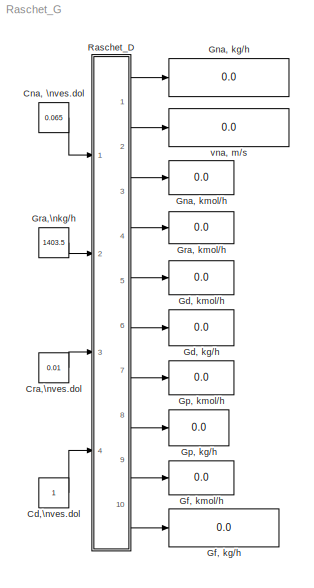
MODEL Raschet_G
KIND model
BLOCK [Constant] Cd,\nves.dol
  SID = 1
BLOCK [Constant] Cna, \nves.dol
  SID = 2
  Value = 0.065
BLOCK [Constant] Cra,\nves.dol
  SID = 3
  Value = 0.01
BLOCK [Display] Gd, kg//h
  Decimation = 1
  Lockdown = off
  Ports = [1]
  SID = 4
BLOCK [Display] Gd, kmol//h
  Decimation = 1
  Lockdown = off
  Ports = [1]
  SID = 5
BLOCK [Display] Gf, kg//h
  Decimation = 1
  Lockdown = off
  Ports = [1]
  SID = 6
BLOCK [Display] Gf, kmol//h
  Decimation = 1
  Lockdown = off
  Ports = [1]
  SID = 7
BLOCK [Display] Gna, kg//h
  Decimation = 1
  Format = long
  Lockdown = off
  Ports = [1]
  SID = 8
BLOCK [Display] Gna, kmol//h
  Decimation = 1
  Lockdown = off
  Ports = [1]
  SID = 9
BLOCK [Display] Gp, kg//h
  Decimation = 1
  Lockdown = off
  Ports = [1]
  SID = 10
BLOCK [Display] Gp, kmol//h
  Decimation = 1
  Lockdown = off
  Ports = [1]
  SID = 11
BLOCK [Display] Gra, kmol//h
  Decimation = 1
  Lockdown = off
  Ports = [1]
  SID = 13
BLOCK [Constant] Gra,\nkg//h
  SID = 12
  Value = 1403.5
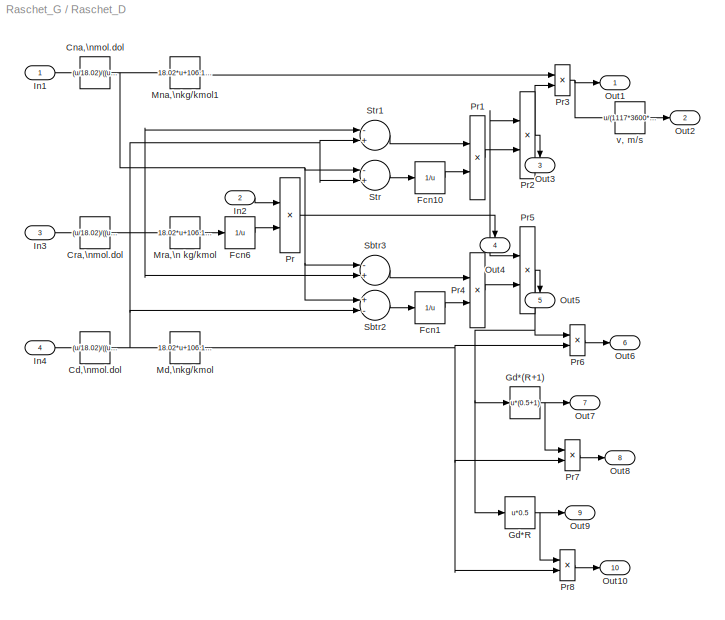
BLOCK [SubSystem] Raschet_D
  FunctionWithSeparateData = off
  MaskHideContents = off
  MinAlgLoopOccurrences = off
  Opaque = off
  Ports = [4, 10]
  PropExecContextOutsideSubsystem = off
  RTWSystemCode = Auto
  RequestExecContextInheritance = off
  SID = 14
BLOCK [Fcn] Raschet_D/Cd,\nmol.dol
  Expr = (u/18.02)/((u/18.02)+((1-u)/106.12))
  SID = 19
BLOCK [Fcn] Raschet_D/Cna,\nmol.dol
  Expr = (u/18.02)/((u/18.02)+((1-u)/106.12))
  SID = 20
BLOCK [Fcn] Raschet_D/Cra,\nmol.dol
  Expr = (u/18.02)/((u/18.02)+((1-u)/106.12))
  SID = 21
BLOCK [Fcn] Raschet_D/Fcn1
  Expr = 1/u
  SID = 22
BLOCK [Fcn] Raschet_D/Fcn10
  Expr = 1/u
  SID = 23
BLOCK [Fcn] Raschet_D/Fcn6
  Expr = 1/u
  SID = 24
BLOCK [Fcn] Raschet_D/Gd*(R+1)
  Expr = u*(0.5+1)
  SID = 25
BLOCK [Fcn] Raschet_D/Gd*R
  Expr = u*0.5
  SID = 26
BLOCK [Inport] Raschet_D/In1
  IconDisplay = Port number
  SID = 15
BLOCK [Inport] Raschet_D/In2
  IconDisplay = Port number
  Port = 2
  SID = 16
BLOCK [Inport] Raschet_D/In3
  IconDisplay = Port number
  Port = 3
  SID = 17
BLOCK [Inport] Raschet_D/In4
  IconDisplay = Port number
  Port = 4
  SID = 18
BLOCK [Fcn] Raschet_D/Md,\nkg//kmol
  Expr = 18.02*u+106.12*(1-u)
  SID = 27
BLOCK [Fcn] Raschet_D/Mna,\nkg//kmol1
  Expr = 18.02*u+106.12*(1-u)
  SID = 28
BLOCK [Fcn] Raschet_D/Mra,\n kg//kmol
  Expr = 18.02*u+106.12*(1-u)
  SID = 29
BLOCK [Outport] Raschet_D/Out1
  IconDisplay = Port number
  SID = 44
BLOCK [Outport] Raschet_D/Out10
  IconDisplay = Port number
  Port = 10
  SID = 53
BLOCK [Outport] Raschet_D/Out2
  IconDisplay = Port number
  Port = 2
  SID = 45
BLOCK [Outport] Raschet_D/Out3
  IconDisplay = Port number
  Port = 3
  SID = 46
BLOCK [Outport] Raschet_D/Out4
  IconDisplay = Port number
  Port = 4
  SID = 47
BLOCK [Outport] Raschet_D/Out5
  IconDisplay = Port number
  Port = 5
  SID = 48
BLOCK [Outport] Raschet_D/Out6
  IconDisplay = Port number
  Port = 6
  SID = 49
BLOCK [Outport] Raschet_D/Out7
  IconDisplay = Port number
  Port = 7
  SID = 50
BLOCK [Outport] Raschet_D/Out8
  IconDisplay = Port number
  Port = 8
  SID = 51
BLOCK [Outport] Raschet_D/Out9
  IconDisplay = Port number
  Port = 9
  SID = 52
BLOCK [Product] Raschet_D/Pr
  InputSameDT = off
  OutDataTypeStr = Inherit: Inherit via internal rule
  Ports = [2, 1]
  SID = 30
  SaturateOnIntegerOverflow = off
BLOCK [Product] Raschet_D/Pr1
  InputSameDT = off
  OutDataTypeStr = Inherit: Inherit via internal rule
  Ports = [2, 1]
  SID = 31
  SaturateOnIntegerOverflow = off
BLOCK [Product] Raschet_D/Pr2
  InputSameDT = off
  OutDataTypeStr = Inherit: Inherit via internal rule
  Ports = [2, 1]
  SID = 32
  SaturateOnIntegerOverflow = off
BLOCK [Product] Raschet_D/Pr3
  InputSameDT = off
  OutDataTypeStr = Inherit: Inherit via internal rule
  Ports = [2, 1]
  SID = 33
  SaturateOnIntegerOverflow = off
BLOCK [Product] Raschet_D/Pr4
  InputSameDT = off
  OutDataTypeStr = Inherit: Inherit via internal rule
  Ports = [2, 1]
  SID = 34
  SaturateOnIntegerOverflow = off
BLOCK [Product] Raschet_D/Pr5
  InputSameDT = off
  OutDataTypeStr = Inherit: Inherit via internal rule
  Ports = [2, 1]
  SID = 35
  SaturateOnIntegerOverflow = off
BLOCK [Product] Raschet_D/Pr6
  InputSameDT = off
  OutDataTypeStr = Inherit: Inherit via internal rule
  Ports = [2, 1]
  SID = 36
  SaturateOnIntegerOverflow = off
BLOCK [Product] Raschet_D/Pr7
  InputSameDT = off
  OutDataTypeStr = Inherit: Inherit via internal rule
  Ports = [2, 1]
  SID = 37
  SaturateOnIntegerOverflow = off
BLOCK [Product] Raschet_D/Pr8
  InputSameDT = off
  OutDataTypeStr = Inherit: Inherit via internal rule
  Ports = [2, 1]
  SID = 38
  SaturateOnIntegerOverflow = off
BLOCK [Sum] Raschet_D/Sbtr2
  InputSameDT = off
  Inputs = +-
  OutDataTypeStr = Inherit: Inherit via internal rule
  Ports = [2, 1]
  SID = 39
  SaturateOnIntegerOverflow = off
BLOCK [Sum] Raschet_D/Sbtr3
  InputSameDT = off
  Inputs = -+
  OutDataTypeStr = Inherit: Inherit via internal rule
  Ports = [2, 1]
  SID = 40
  SaturateOnIntegerOverflow = off
BLOCK [Sum] Raschet_D/Str
  InputSameDT = off
  Inputs = -+
  OutDataTypeStr = Inherit: Inherit via internal rule
  Ports = [2, 1]
  SID = 41
  SaturateOnIntegerOverflow = off
BLOCK [Sum] Raschet_D/Str1
  InputSameDT = off
  Inputs = -+
  OutDataTypeStr = Inherit: Inherit via internal rule
  Ports = [2, 1]
  SID = 42
  SaturateOnIntegerOverflow = off
BLOCK [Fcn] Raschet_D/v, m//s
  Expr = u/(1117*3600*0.785*1.96)
  SID = 43
BLOCK [Display] vna, m//s
  Decimation = 1
  Lockdown = off
  Ports = [1]
  SID = 54
LINE Cd,\nves.dol:1 -> Raschet_D:4
LINE Cna, \nves.dol:1 -> Raschet_D:1
LINE Cra,\nves.dol:1 -> Raschet_D:3
LINE Gra,\nkg//h:1 -> Raschet_D:2
NET Raschet_D/Cd,\nmol.dol:1 -> Raschet_D/Md,\nkg//kmol:1, Raschet_D/Sbtr2:2, Raschet_D/Str1:2, Raschet_D/Str:2
NET Raschet_D/Cna,\nmol.dol:1 -> Raschet_D/Mna,\nkg//kmol1:1, Raschet_D/Sbtr2:1, Raschet_D/Sbtr3:1, Raschet_D/Str:1
NET Raschet_D/Cra,\nmol.dol:1 -> Raschet_D/Mra,\n kg//kmol:1, Raschet_D/Sbtr3:2, Raschet_D/Str1:1
LINE Raschet_D/Fcn10:1 -> Raschet_D/Pr1:2
LINE Raschet_D/Fcn1:1 -> Raschet_D/Pr4:2
LINE Raschet_D/Fcn6:1 -> Raschet_D/Pr:2
NET Raschet_D/Gd*(R+1):1 -> Raschet_D/Out7:1, Raschet_D/Pr7:1
NET Raschet_D/Gd*R:1 -> Raschet_D/Out9:1, Raschet_D/Pr8:1
LINE Raschet_D/In1:1 -> Raschet_D/Cna,\nmol.dol:1
LINE Raschet_D/In2:1 -> Raschet_D/Pr:1
LINE Raschet_D/In3:1 -> Raschet_D/Cra,\nmol.dol:1
LINE Raschet_D/In4:1 -> Raschet_D/Cd,\nmol.dol:1
NET Raschet_D/Md,\nkg//kmol:1 -> Raschet_D/Pr6:2, Raschet_D/Pr7:2, Raschet_D/Pr8:2
LINE Raschet_D/Mna,\nkg//kmol1:1 -> Raschet_D/Pr3:1
LINE Raschet_D/Mra,\n kg//kmol:1 -> Raschet_D/Fcn6:1
LINE Raschet_D/Pr1:1 -> Raschet_D/Pr2:2
NET Raschet_D/Pr2:1 -> Raschet_D/Out3:1, Raschet_D/Pr3:2
NET Raschet_D/Pr3:1 -> Raschet_D/Out1:1, Raschet_D/v, m//s:1
LINE Raschet_D/Pr4:1 -> Raschet_D/Pr5:2
NET Raschet_D/Pr5:1 -> Raschet_D/Gd*(R+1):1, Raschet_D/Gd*R:1, Raschet_D/Out5:1, Raschet_D/Pr6:1
LINE Raschet_D/Pr6:1 -> Raschet_D/Out6:1
LINE Raschet_D/Pr7:1 -> Raschet_D/Out8:1
LINE Raschet_D/Pr8:1 -> Raschet_D/Out10:1
NET Raschet_D/Pr:1 -> Raschet_D/Out4:1, Raschet_D/Pr2:1, Raschet_D/Pr5:1
LINE Raschet_D/Sbtr2:1 -> Raschet_D/Fcn1:1
LINE Raschet_D/Sbtr3:1 -> Raschet_D/Pr4:1
LINE Raschet_D/Str1:1 -> Raschet_D/Pr1:1
LINE Raschet_D/Str:1 -> Raschet_D/Fcn10:1
LINE Raschet_D/v, m//s:1 -> Raschet_D/Out2:1
LINE Raschet_D:1 -> Gna, kg//h:1
LINE Raschet_D:10 -> Gf, kg//h:1
LINE Raschet_D:2 -> vna, m//s:1
LINE Raschet_D:3 -> Gna, kmol//h:1
LINE Raschet_D:4 -> Gra, kmol//h:1
LINE Raschet_D:5 -> Gd, kmol//h:1
LINE Raschet_D:6 -> Gd, kg//h:1
LINE Raschet_D:7 -> Gp, kmol//h:1
LINE Raschet_D:8 -> Gp, kg//h:1
LINE Raschet_D:9 -> Gf, kmol//h:1
note: NET lines group one-source signal fan-out (src -> all destinations, sorted); 1:1 wires keep LINE
